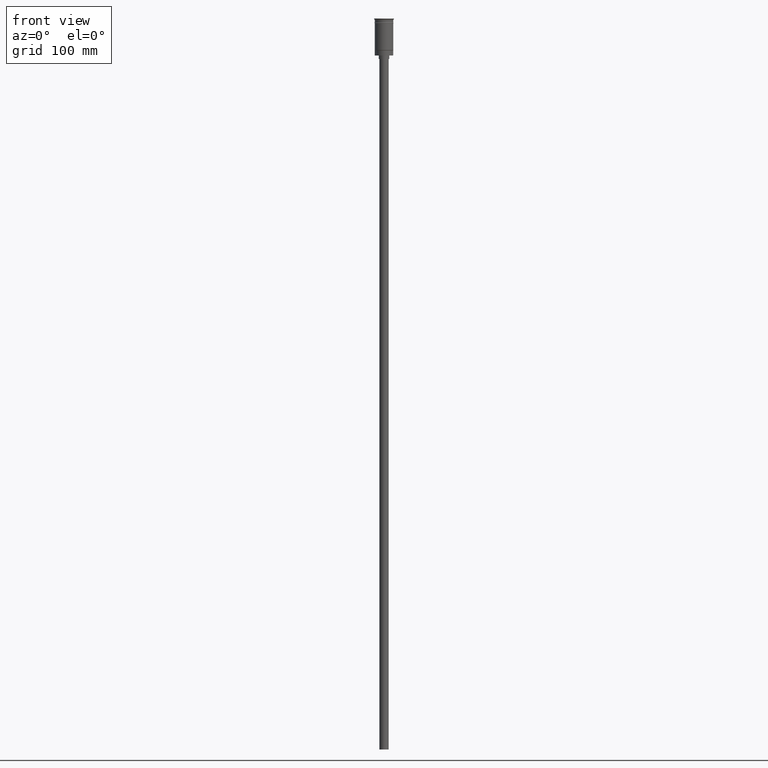
[diagram: clean part render]
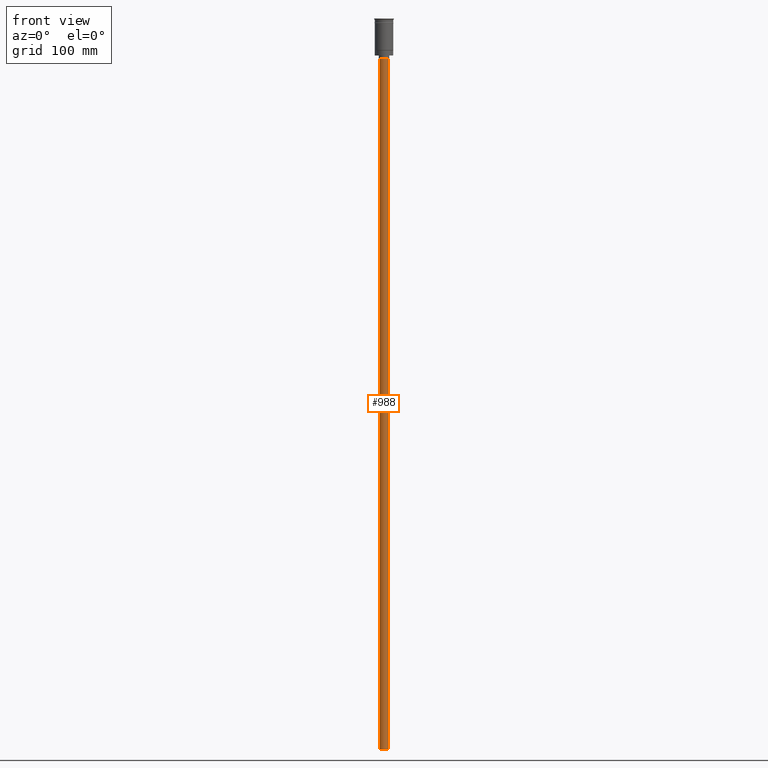
[diagram: same view with one face highlighted and labeled with its STEP entity id]
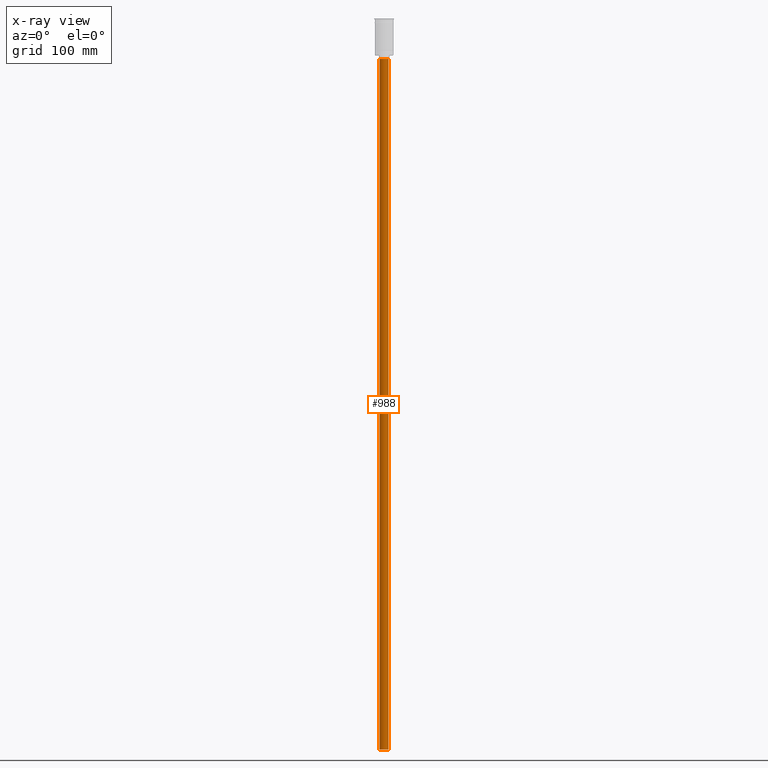
[diagram: x-ray of the same camera — body ghosted, the highlighted face saturated]
A machine part, front view. The second image highlights one B-rep face of the part: STEP entity #988.
The next image is the same camera in x-ray: the body ghosted, the highlighted face saturated — about 0% of this face is hidden behind the body in this view.
In plain terms, the highlighted cylindrical surface (edge-blend (fillet) strip) has radius 4 mm, axis along (-0, -0, 1).
Its self-contained STEP definition (entity closure, byte-faithful):
#29 = DIRECTION ( 'NONE',  ( -1.000000000000000000, 0.000000000000000000, 0.000000000000000000 ) ) ;
#112 = CARTESIAN_POINT ( 'NONE',  ( 0.000000000000000000, 0.000000000000000000, -35.00000000000000000 ) ) ;
#128 = DIRECTION ( 'NONE',  ( -0.000000000000000000, -0.000000000000000000, 1.000000000000000000 ) ) ;
#152 = ORIENTED_EDGE ( 'NONE', *, *, #829, .T. ) ;
#174 = EDGE_CURVE ( 'NONE', #1094, #1394, #1302, .T. ) ;
#196 = ORIENTED_EDGE ( 'NONE', *, *, #591, .F. ) ;
#198 = CARTESIAN_POINT ( 'NONE',  ( -4.000000000000000000, 4.898587196589412829E-16, -632.0000000000000000 ) ) ;
#210 = EDGE_CURVE ( 'NONE', #494, #1161, #1253, .T. ) ;
#293 = CARTESIAN_POINT ( 'NONE',  ( -4.000000000000000000, 4.898587196589412829E-16, -35.00000000000000000 ) ) ;
#330 = DIRECTION ( 'NONE',  ( -0.000000000000000000, -0.000000000000000000, 1.000000000000000000 ) ) ;
#379 = CYLINDRICAL_SURFACE ( 'NONE', #468, 4.000000000000000000 ) ;
#468 = AXIS2_PLACEMENT_3D ( 'NONE', #1107, #1296, #989 ) ;
#494 = VERTEX_POINT ( 'NONE', #1012 ) ;
#500 = LINE ( 'NONE', #993, #575 ) ;
#575 = VECTOR ( 'NONE', #128, 1000.000000000000000 ) ;
#591 = EDGE_CURVE ( 'NONE', #1161, #1394, #1446, .T. ) ;
#595 = AXIS2_PLACEMENT_3D ( 'NONE', #797, #1030, #1284 ) ;
#797 = CARTESIAN_POINT ( 'NONE',  ( 0.000000000000000000, 0.000000000000000000, -632.0000000000000000 ) ) ;
#805 = EDGE_LOOP ( 'NONE', ( #196, #900, #152, #1496 ) ) ;
#829 = EDGE_CURVE ( 'NONE', #494, #1094, #500, .T. ) ;
#861 = AXIS2_PLACEMENT_3D ( 'NONE', #112, #1584, #29 ) ;
#900 = ORIENTED_EDGE ( 'NONE', *, *, #210, .F. ) ;
#988 = ADVANCED_FACE ( 'NONE', ( #1497 ), #379, .T. ) ;
#989 = DIRECTION ( 'NONE',  ( 1.000000000000000000, 0.000000000000000000, 0.000000000000000000 ) ) ;
#993 = CARTESIAN_POINT ( 'NONE',  ( 4.000000000000000000, 0.000000000000000000, -632.0000000000000000 ) ) ;
#1012 = CARTESIAN_POINT ( 'NONE',  ( 4.000000000000000000, 0.000000000000000000, -632.0000000000000000 ) ) ;
#1027 = CARTESIAN_POINT ( 'NONE',  ( 4.000000000000000000, 0.000000000000000000, -35.00000000000000000 ) ) ;
#1030 = DIRECTION ( 'NONE',  ( 0.000000000000000000, 0.000000000000000000, -1.000000000000000000 ) ) ;
#1094 = VERTEX_POINT ( 'NONE', #1027 ) ;
#1107 = CARTESIAN_POINT ( 'NONE',  ( 0.000000000000000000, 0.000000000000000000, -632.0000000000000000 ) ) ;
#1161 = VERTEX_POINT ( 'NONE', #198 ) ;
#1253 = CIRCLE ( 'NONE', #595, 4.000000000000000000 ) ;
#1256 = VECTOR ( 'NONE', #330, 1000.000000000000000 ) ;
#1284 = DIRECTION ( 'NONE',  ( -1.000000000000000000, 0.000000000000000000, 0.000000000000000000 ) ) ;
#1296 = DIRECTION ( 'NONE',  ( -0.000000000000000000, -0.000000000000000000, 1.000000000000000000 ) ) ;
#1302 = CIRCLE ( 'NONE', #861, 4.000000000000000000 ) ;
#1394 = VERTEX_POINT ( 'NONE', #293 ) ;
#1446 = LINE ( 'NONE', #1549, #1256 ) ;
#1496 = ORIENTED_EDGE ( 'NONE', *, *, #174, .T. ) ;
#1497 = FACE_OUTER_BOUND ( 'NONE', #805, .T. ) ;
#1549 = CARTESIAN_POINT ( 'NONE',  ( -4.000000000000000000, 4.898587196589412829E-16, -632.0000000000000000 ) ) ;
#1584 = DIRECTION ( 'NONE',  ( 0.000000000000000000, 0.000000000000000000, -1.000000000000000000 ) ) ;